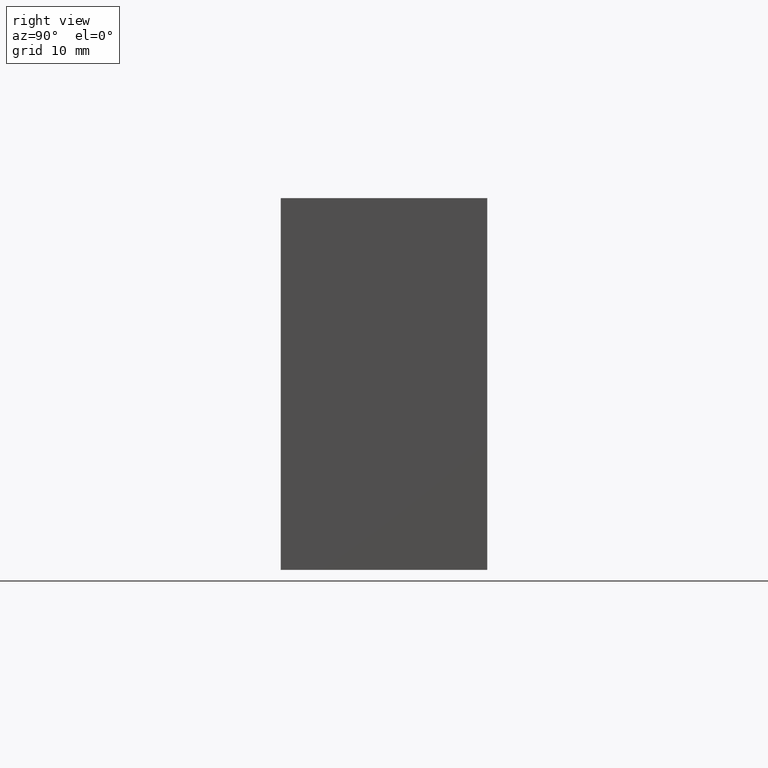
[diagram: clean part render]
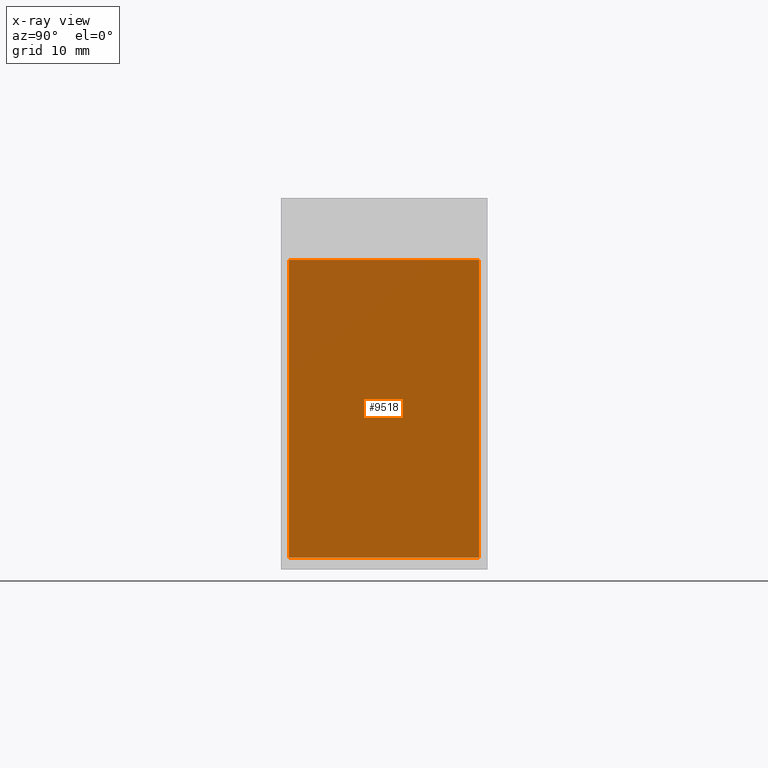
[diagram: x-ray — body ghosted, one internal face saturated and labeled with its STEP entity id]
A machine part, right view, then the same camera in x-ray: the body is ghosted and one INTERNAL B-rep face — a face not visible from any outside direction — is saturated and labeled: STEP entity #9518.
In plain terms, the highlighted planar face has unit normal (1, 0, 0).
Its self-contained STEP definition (entity closure, byte-faithful):
#1728 = ORIENTED_EDGE ( 'NONE', *, *, #5861, .F. ) ;
#2088 = CARTESIAN_POINT ( 'NONE',  ( -18.00000000000000000, 11.50000000000000178, -0.5000000000000004441 ) ) ;
#2479 = DIRECTION ( 'NONE',  ( 1.508455196501571429E-16, 1.000000000000000000, 0.000000000000000000 ) ) ;
#2540 = ORIENTED_EDGE ( 'NONE', *, *, #16499, .F. ) ;
#2720 = LINE ( 'NONE', #18423, #14981 ) ;
#3658 = VECTOR ( 'NONE', #8310, 1000.000000000000000 ) ;
#4029 = ORIENTED_EDGE ( 'NONE', *, *, #11949, .F. ) ;
#5209 = DIRECTION ( 'NONE',  ( 1.000000000000000000, 0.000000000000000000, 0.000000000000000000 ) ) ;
#5861 = EDGE_CURVE ( 'NONE', #8121, #18592, #8851, .T. ) ;
#6716 = CARTESIAN_POINT ( 'NONE',  ( -18.00000000000000000, 11.50000000000000178, -0.5000000000000004441 ) ) ;
#6790 = CARTESIAN_POINT ( 'NONE',  ( -17.99999999999999645, -11.49999999999999822, -0.5000000000000004441 ) ) ;
#6834 = CARTESIAN_POINT ( 'NONE',  ( 0.000000000000000000, 0.000000000000000000, -0.5000000000000004441 ) ) ;
#7349 = CARTESIAN_POINT ( 'NONE',  ( 18.00000000000000355, 11.50000000000000178, -0.5000000000000004441 ) ) ;
#8121 = VERTEX_POINT ( 'NONE', #2088 ) ;
#8310 = DIRECTION ( 'NONE',  ( 1.508455196501571429E-16, -1.000000000000000000, 0.000000000000000000 ) ) ;
#8619 = DIRECTION ( 'NONE',  ( -1.000000000000000000, 0.000000000000000000, 0.000000000000000000 ) ) ;
#8851 = LINE ( 'NONE', #6716, #3658 ) ;
#9518 = ADVANCED_FACE ( 'NONE', ( #12371 ), #13386, .F. ) ;
#9803 = LINE ( 'NONE', #6790, #11882 ) ;
#11882 = VECTOR ( 'NONE', #14958, 1000.000000000000000 ) ;
#11888 = VERTEX_POINT ( 'NONE', #17574 ) ;
#11949 = EDGE_CURVE ( 'NONE', #17341, #11888, #20385, .T. ) ;
#12345 = EDGE_LOOP ( 'NONE', ( #4029, #2540, #1728, #17694 ) ) ;
#12371 = FACE_OUTER_BOUND ( 'NONE', #12345, .T. ) ;
#13386 = PLANE ( 'NONE',  #14564 ) ;
#13452 = DIRECTION ( 'NONE',  ( 0.000000000000000000, 0.000000000000000000, 1.000000000000000000 ) ) ;
#14564 = AXIS2_PLACEMENT_3D ( 'NONE', #6834, #13452, #5209 ) ;
#14958 = DIRECTION ( 'NONE',  ( 1.000000000000000000, 0.000000000000000000, 0.000000000000000000 ) ) ;
#14981 = VECTOR ( 'NONE', #8619, 1000.000000000000000 ) ;
#16232 = CARTESIAN_POINT ( 'NONE',  ( -17.99999999999999645, -11.49999999999999822, -0.5000000000000004441 ) ) ;
#16499 = EDGE_CURVE ( 'NONE', #18592, #17341, #9803, .T. ) ;
#17341 = VERTEX_POINT ( 'NONE', #20882 ) ;
#17574 = CARTESIAN_POINT ( 'NONE',  ( 18.00000000000000355, 11.50000000000000178, -0.5000000000000004441 ) ) ;
#17694 = ORIENTED_EDGE ( 'NONE', *, *, #17837, .F. ) ;
#17837 = EDGE_CURVE ( 'NONE', #11888, #8121, #2720, .T. ) ;
#18423 = CARTESIAN_POINT ( 'NONE',  ( -18.00000000000000000, 11.50000000000000178, -0.5000000000000004441 ) ) ;
#18592 = VERTEX_POINT ( 'NONE', #16232 ) ;
#20385 = LINE ( 'NONE', #7349, #20650 ) ;
#20650 = VECTOR ( 'NONE', #2479, 1000.000000000000000 ) ;
#20882 = CARTESIAN_POINT ( 'NONE',  ( 17.99999999999999645, -11.49999999999999822, -0.5000000000000004441 ) ) ;